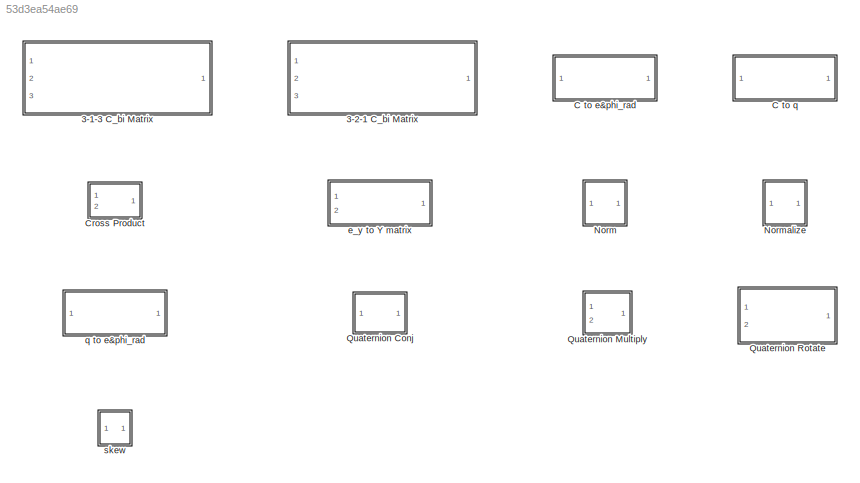
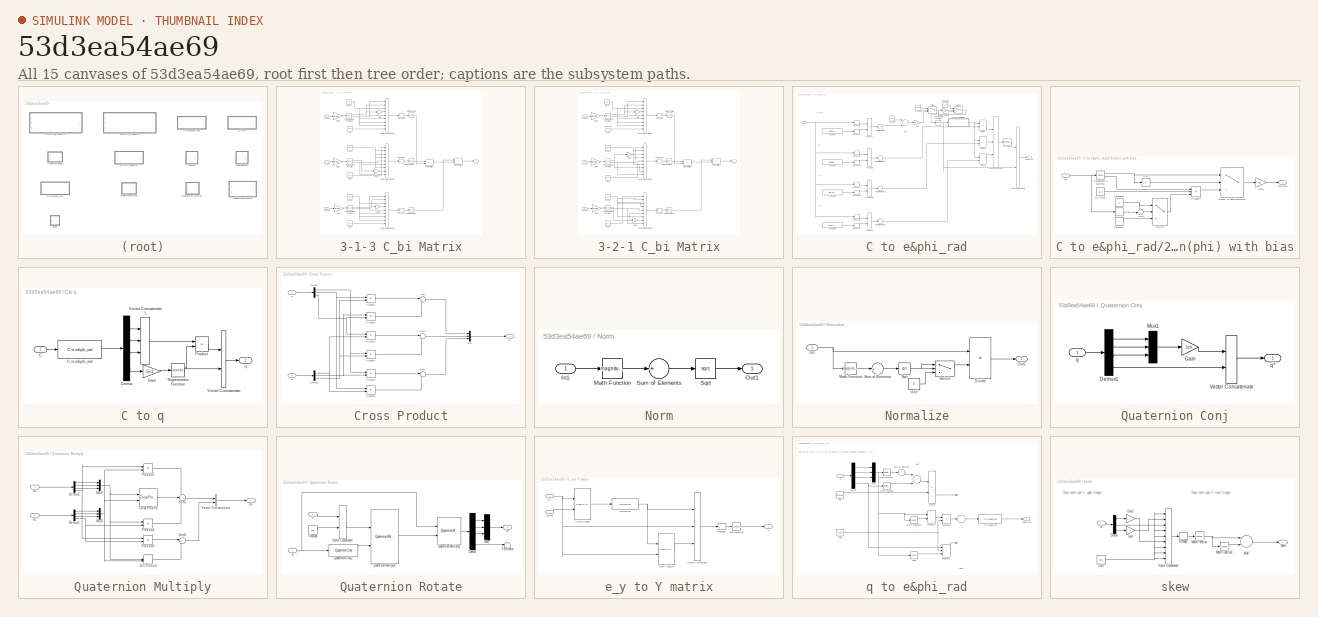
[diagram: thumbnail index - all 15 canvases of the model, root first then tree order]
MODEL slx_53d3ea54ae69
KIND library
CONFIG AbsTol = auto
CONFIG EnableMultiTasking = off
CONFIG FixedStep = auto
CONFIG MaxStep = auto
CONFIG MinStep = auto
CONFIG RelTol = 1e-3
CONFIG SampleTimeConstraint = Unconstrained
CONFIG Solver = VariableStepAuto
CONFIG SolverName = VariableStepAuto
CONFIG StartTime = 0.0
CONFIG StopTime = 10.0
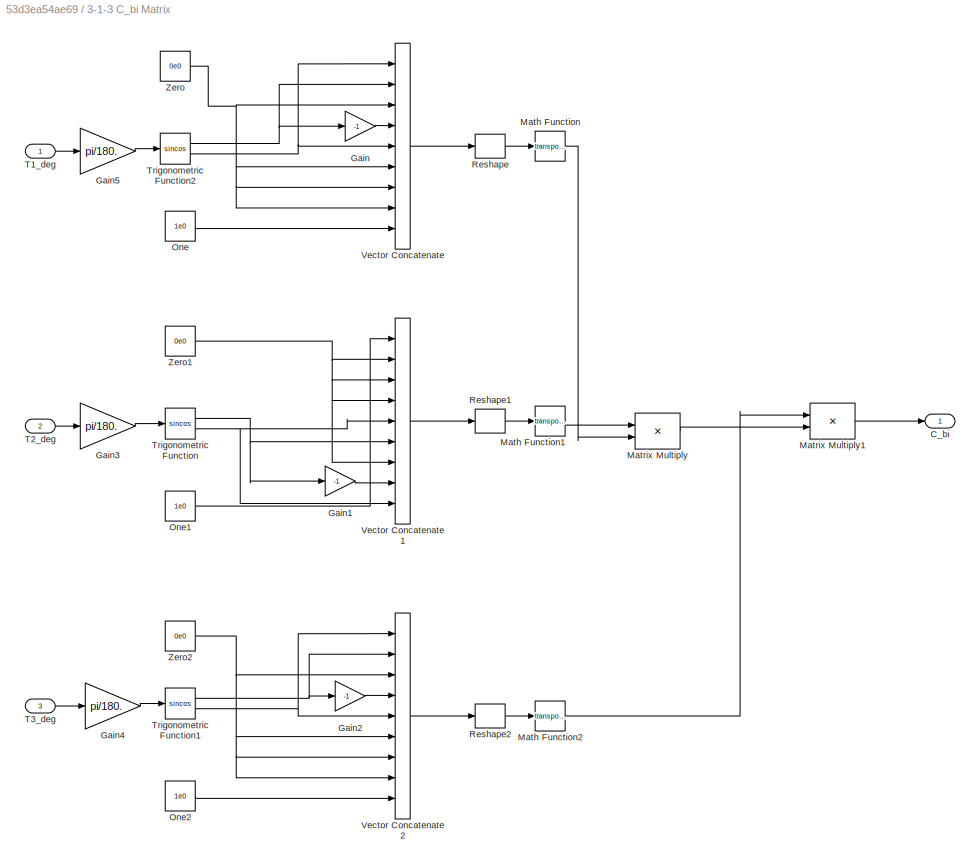
BLOCK [SubSystem] 3-1-3 C_bi Matrix
  Ports = [3, 1]
  RequestExecContextInheritance = off
  Tag = text(.05,.5,'{\itEquation:}  \Sigma \alpha^2 + \n\beta^2 \rightarrow \infty, \Pi, \phi_3 = {\bfcool}', \n'hor','left','texmode','on')
BLOCK [Outport] 3-1-3 C_bi Matrix/C_bi
  IconDisplay = Port number
BLOCK [Gain] 3-1-3 C_bi Matrix/Gain
  Gain = -1
  OutDataTypeStr = Inherit: Inherit via internal rule
  ParamDataTypeStr = Inherit: Inherit via internal rule
  SaturateOnIntegerOverflow = off
BLOCK [Gain] 3-1-3 C_bi Matrix/Gain1
  Gain = -1
  OutDataTypeStr = Inherit: Inherit via internal rule
  ParamDataTypeStr = Inherit: Inherit via internal rule
  SaturateOnIntegerOverflow = off
BLOCK [Gain] 3-1-3 C_bi Matrix/Gain2
  Gain = -1
  OutDataTypeStr = Inherit: Inherit via internal rule
  ParamDataTypeStr = Inherit: Inherit via internal rule
  SaturateOnIntegerOverflow = off
BLOCK [Gain] 3-1-3 C_bi Matrix/Gain3
  Gain = pi/180.
  OutDataTypeStr = Inherit: Inherit via internal rule
  ParamDataTypeStr = Inherit: Inherit via internal rule
  SaturateOnIntegerOverflow = off
BLOCK [Gain] 3-1-3 C_bi Matrix/Gain4
  Gain = pi/180.
  OutDataTypeStr = Inherit: Inherit via internal rule
  ParamDataTypeStr = Inherit: Inherit via internal rule
  SaturateOnIntegerOverflow = off
BLOCK [Gain] 3-1-3 C_bi Matrix/Gain5
  Gain = pi/180.
  OutDataTypeStr = Inherit: Inherit via internal rule
  ParamDataTypeStr = Inherit: Inherit via internal rule
  SaturateOnIntegerOverflow = off
BLOCK [Math] 3-1-3 C_bi Matrix/Math Function
  Operator = transpose
  Ports = [1, 1]
  SignedPower = off
BLOCK [Math] 3-1-3 C_bi Matrix/Math Function1
  Operator = transpose
  Ports = [1, 1]
  SignedPower = off
BLOCK [Math] 3-1-3 C_bi Matrix/Math Function2
  Operator = transpose
  Ports = [1, 1]
  SignedPower = off
BLOCK [Product] 3-1-3 C_bi Matrix/Matrix Multiply
  InputSameDT = off
  Multiplication = Matrix(*)
  OutDataTypeStr = Inherit: Inherit via internal rule
  Ports = [2, 1]
  RndMeth = Floor
  SaturateOnIntegerOverflow = off
BLOCK [Product] 3-1-3 C_bi Matrix/Matrix Multiply1
  InputSameDT = off
  Multiplication = Matrix(*)
  OutDataTypeStr = Inherit: Inherit via internal rule
  Ports = [2, 1]
  RndMeth = Floor
  SaturateOnIntegerOverflow = off
BLOCK [Constant] 3-1-3 C_bi Matrix/One
  Value = 1e0
BLOCK [Constant] 3-1-3 C_bi Matrix/One1
  Value = 1e0
BLOCK [Constant] 3-1-3 C_bi Matrix/One2
  Value = 1e0
BLOCK [Reshape] 3-1-3 C_bi Matrix/Reshape
  OutputDimensionality = Customize
  OutputDimensions = [3,3]
  Ports = [1, 1]
BLOCK [Reshape] 3-1-3 C_bi Matrix/Reshape1
  OutputDimensionality = Customize
  OutputDimensions = [3,3]
  Ports = [1, 1]
BLOCK [Reshape] 3-1-3 C_bi Matrix/Reshape2
  OutputDimensionality = Customize
  OutputDimensions = [3,3]
  Ports = [1, 1]
BLOCK [Inport] 3-1-3 C_bi Matrix/T1_deg
  IconDisplay = Port number
BLOCK [Inport] 3-1-3 C_bi Matrix/T2_deg
  IconDisplay = Port number
  Port = 2
BLOCK [Inport] 3-1-3 C_bi Matrix/T3_deg
  IconDisplay = Port number
  Port = 3
BLOCK [Trigonometry] 3-1-3 C_bi Matrix/Trigonometric Function
  Operator = sincos
  Ports = [1, 2]
BLOCK [Trigonometry] 3-1-3 C_bi Matrix/Trigonometric Function1
  Operator = sincos
  Ports = [1, 2]
BLOCK [Trigonometry] 3-1-3 C_bi Matrix/Trigonometric Function2
  Operator = sincos
  Ports = [1, 2]
BLOCK [Concatenate] 3-1-3 C_bi Matrix/Vector Concatenate
  NumInputs = 9
  Ports = [9, 1]
BLOCK [Concatenate] 3-1-3 C_bi Matrix/Vector Concatenate1
  NumInputs = 9
  Ports = [9, 1]
BLOCK [Concatenate] 3-1-3 C_bi Matrix/Vector Concatenate2
  NumInputs = 9
  Ports = [9, 1]
BLOCK [Constant] 3-1-3 C_bi Matrix/Zero
  Value = 0e0
BLOCK [Constant] 3-1-3 C_bi Matrix/Zero1
  Value = 0e0
BLOCK [Constant] 3-1-3 C_bi Matrix/Zero2
  Value = 0e0
BLOCK [SubSystem] 3-2-1 C_bi Matrix
  Ports = [3, 1]
  RequestExecContextInheritance = off
  Tag = text(.05,.5,'{\itEquation:}  \Sigma \alpha^2 + \n\beta^2 \rightarrow \infty, \Pi, \phi_3 = {\bfcool}', \n'hor','left','texmode','on')
BLOCK [Outport] 3-2-1 C_bi Matrix/C_bi
  IconDisplay = Port number
BLOCK [Gain] 3-2-1 C_bi Matrix/Gain
  Gain = -1
  OutDataTypeStr = Inherit: Inherit via internal rule
  ParamDataTypeStr = Inherit: Inherit via internal rule
  SaturateOnIntegerOverflow = off
BLOCK [Gain] 3-2-1 C_bi Matrix/Gain1
  Gain = -1
  OutDataTypeStr = Inherit: Inherit via internal rule
  ParamDataTypeStr = Inherit: Inherit via internal rule
  SaturateOnIntegerOverflow = off
BLOCK [Gain] 3-2-1 C_bi Matrix/Gain2
  Gain = -1
  OutDataTypeStr = Inherit: Inherit via internal rule
  ParamDataTypeStr = Inherit: Inherit via internal rule
  SaturateOnIntegerOverflow = off
BLOCK [Gain] 3-2-1 C_bi Matrix/Gain3
  Gain = pi/180.
  OutDataTypeStr = Inherit: Inherit via internal rule
  ParamDataTypeStr = Inherit: Inherit via internal rule
  SaturateOnIntegerOverflow = off
BLOCK [Gain] 3-2-1 C_bi Matrix/Gain4
  Gain = pi/180.
  OutDataTypeStr = Inherit: Inherit via internal rule
  ParamDataTypeStr = Inherit: Inherit via internal rule
  SaturateOnIntegerOverflow = off
BLOCK [Gain] 3-2-1 C_bi Matrix/Gain5
  Gain = pi/180.
  OutDataTypeStr = Inherit: Inherit via internal rule
  ParamDataTypeStr = Inherit: Inherit via internal rule
  SaturateOnIntegerOverflow = off
BLOCK [Math] 3-2-1 C_bi Matrix/Math Function
  Operator = transpose
  Ports = [1, 1]
  SignedPower = off
BLOCK [Math] 3-2-1 C_bi Matrix/Math Function1
  Operator = transpose
  Ports = [1, 1]
  SignedPower = off
BLOCK [Math] 3-2-1 C_bi Matrix/Math Function2
  Operator = transpose
  Ports = [1, 1]
  SignedPower = off
BLOCK [Product] 3-2-1 C_bi Matrix/Matrix Multiply
  InputSameDT = off
  Multiplication = Matrix(*)
  OutDataTypeStr = Inherit: Inherit via internal rule
  Ports = [2, 1]
  RndMeth = Floor
  SaturateOnIntegerOverflow = off
BLOCK [Product] 3-2-1 C_bi Matrix/Matrix Multiply1
  InputSameDT = off
  Multiplication = Matrix(*)
  OutDataTypeStr = Inherit: Inherit via internal rule
  Ports = [2, 1]
  RndMeth = Floor
  SaturateOnIntegerOverflow = off
BLOCK [Constant] 3-2-1 C_bi Matrix/One
  Value = 1e0
BLOCK [Constant] 3-2-1 C_bi Matrix/One1
  Value = 1e0
BLOCK [Constant] 3-2-1 C_bi Matrix/One2
  Value = 1e0
BLOCK [Reshape] 3-2-1 C_bi Matrix/Reshape
  OutputDimensionality = Customize
  OutputDimensions = [3,3]
  Ports = [1, 1]
BLOCK [Reshape] 3-2-1 C_bi Matrix/Reshape1
  OutputDimensionality = Customize
  OutputDimensions = [3,3]
  Ports = [1, 1]
BLOCK [Reshape] 3-2-1 C_bi Matrix/Reshape2
  OutputDimensionality = Customize
  OutputDimensions = [3,3]
  Ports = [1, 1]
BLOCK [Inport] 3-2-1 C_bi Matrix/T1_deg
  IconDisplay = Port number
BLOCK [Inport] 3-2-1 C_bi Matrix/T2_deg
  IconDisplay = Port number
  Port = 2
BLOCK [Inport] 3-2-1 C_bi Matrix/T3_deg
  IconDisplay = Port number
  Port = 3
BLOCK [Trigonometry] 3-2-1 C_bi Matrix/Trigonometric Function
  Operator = sincos
  Ports = [1, 2]
BLOCK [Trigonometry] 3-2-1 C_bi Matrix/Trigonometric Function1
  Operator = sincos
  Ports = [1, 2]
BLOCK [Trigonometry] 3-2-1 C_bi Matrix/Trigonometric Function2
  Operator = sincos
  Ports = [1, 2]
BLOCK [Concatenate] 3-2-1 C_bi Matrix/Vector Concatenate
  NumInputs = 9
  Ports = [9, 1]
BLOCK [Concatenate] 3-2-1 C_bi Matrix/Vector Concatenate1
  NumInputs = 9
  Ports = [9, 1]
BLOCK [Concatenate] 3-2-1 C_bi Matrix/Vector Concatenate2
  NumInputs = 9
  Ports = [9, 1]
BLOCK [Constant] 3-2-1 C_bi Matrix/Zero
  Value = 0e0
BLOCK [Constant] 3-2-1 C_bi Matrix/Zero1
  Value = 0e0
BLOCK [Constant] 3-2-1 C_bi Matrix/Zero2
  Value = 0e0
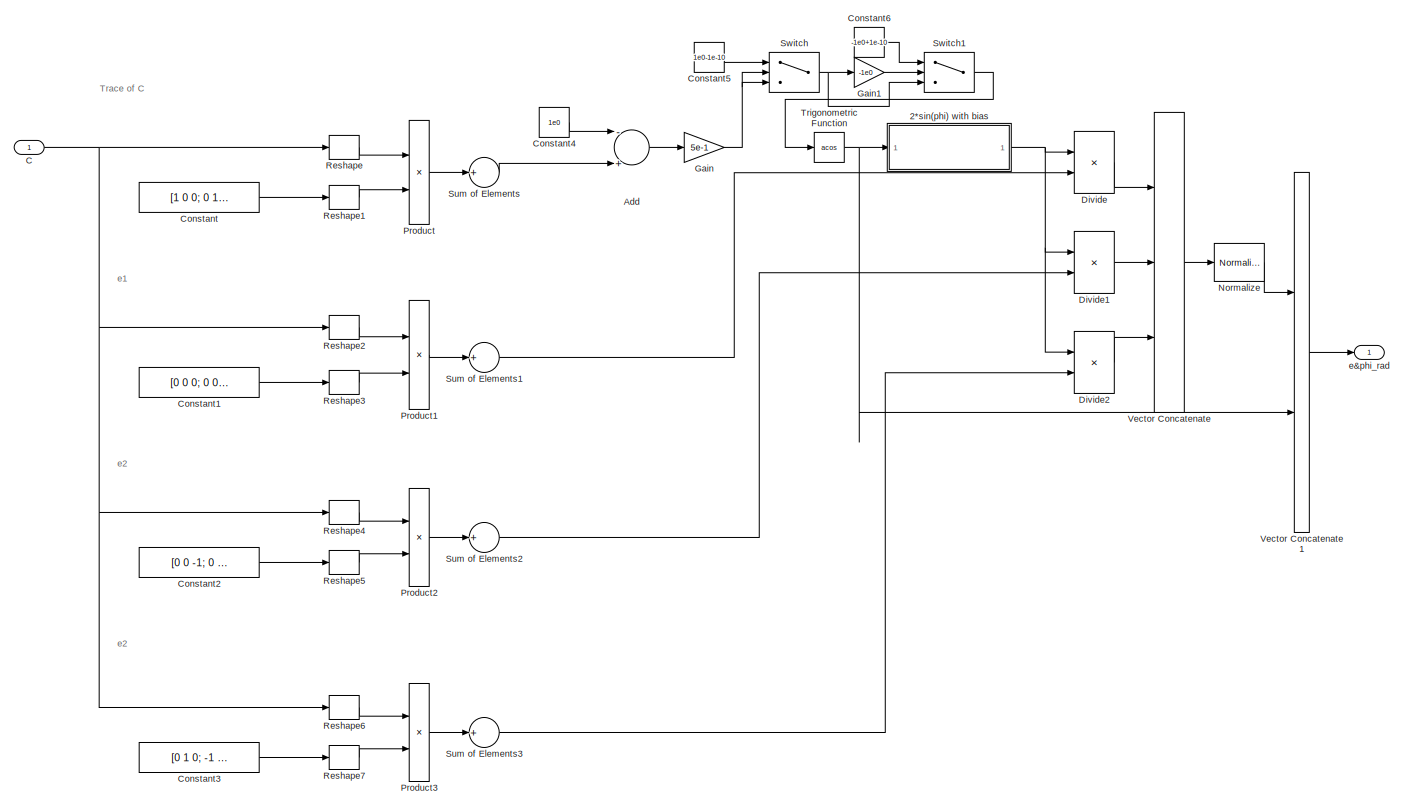
[diagram: C to e&phi_rad - part 1/1, most of the canvas]
BLOCK [SubSystem] C to e&phi_rad
  Ports = [1, 1]
  RequestExecContextInheritance = off
BLOCK [SubSystem] C to e&phi_rad/2*sin(phi) with bias
  Ports = [1, 1]
  RequestExecContextInheritance = off
BLOCK [Abs] C to e&phi_rad/2*sin(phi) with bias/Abs
  SaturateOnIntegerOverflow = off
BLOCK [Constant] C to e&phi_rad/2*sin(phi) with bias/Constant2
BLOCK [Constant] C to e&phi_rad/2*sin(phi) with bias/Constant3
  Value = -1
BLOCK [Gain] C to e&phi_rad/2*sin(phi) with bias/Gain1
  Gain = 2e0
  OutDataTypeStr = Inherit: Inherit via internal rule
  ParamDataTypeStr = Inherit: Inherit via internal rule
  SaturateOnIntegerOverflow = off
BLOCK [Constant] C to e&phi_rad/2*sin(phi) with bias/Min value
  Value = 1e-7
BLOCK [Product] C to e&phi_rad/2*sin(phi) with bias/Product4
  InputSameDT = off
  Inputs = 3
  OutDataTypeStr = Inherit: Inherit via internal rule
  Ports = [3, 1]
  RndMeth = Floor
  SaturateOnIntegerOverflow = off
BLOCK [Signum] C to e&phi_rad/2*sin(phi) with bias/Sign
  ZeroCross = off
BLOCK [Sum] C to e&phi_rad/2*sin(phi) with bias/Sum
  IconShape = round
  InputSameDT = off
  Inputs = ++|
  OutDataTypeStr = Inherit: Inherit via internal rule
  Ports = [2, 1]
  SaturateOnIntegerOverflow = off
BLOCK [Switch] C to e&phi_rad/2*sin(phi) with bias/Switch
  Criteria = u2 > Threshold
  InputSameDT = off
  SaturateOnIntegerOverflow = off
  ZeroCross = off
BLOCK [Trigonometry] C to e&phi_rad/2*sin(phi) with bias/Trigonometric Function1
  Operator = sincos
  Ports = [1, 2]
BLOCK [Inport] C to e&phi_rad/2*sin(phi) with bias/phi
  IconDisplay = Port number
BLOCK [Switch] C to e&phi_rad/2*sin(phi) with bias/sin(phi) or epsilon*cos(phi)
  Criteria = u2 > Threshold
  InputSameDT = off
  SaturateOnIntegerOverflow = off
  Threshold = 1e-7
  ZeroCross = off
BLOCK [Outport] C to e&phi_rad/2*sin(phi) with bias/~2*sin(phi)
  IconDisplay = Port number
BLOCK [Sum] C to e&phi_rad/Add
  InputSameDT = off
  Inputs = -+
  OutDataTypeStr = Inherit: Inherit via internal rule
  Ports = [2, 1]
  SaturateOnIntegerOverflow = off
BLOCK [Inport] C to e&phi_rad/C
  IconDisplay = Port number
BLOCK [Constant] C to e&phi_rad/Constant
  Value = [1 0 0; 0 1 0; 0 0 1]
BLOCK [Constant] C to e&phi_rad/Constant1
  Value = [0 0 0; 0 0 1; 0 -1 0]
BLOCK [Constant] C to e&phi_rad/Constant2
  Value = [0 0 -1; 0 0 0; 1 0 0]
BLOCK [Constant] C to e&phi_rad/Constant3
  Value = [0 1 0; -1 0 0; 0 0 0]
BLOCK [Constant] C to e&phi_rad/Constant4
  Value = 1e0
BLOCK [Constant] C to e&phi_rad/Constant5
  Value = 1e0-1e-10
BLOCK [Constant] C to e&phi_rad/Constant6
  Value = -1e0+1e-10
BLOCK [Product] C to e&phi_rad/Divide
  InputSameDT = off
  Inputs = /*
  OutDataTypeStr = Inherit: Inherit via internal rule
  Ports = [2, 1]
  RndMeth = Floor
  SaturateOnIntegerOverflow = off
BLOCK [Product] C to e&phi_rad/Divide1
  InputSameDT = off
  Inputs = /*
  OutDataTypeStr = Inherit: Inherit via internal rule
  Ports = [2, 1]
  RndMeth = Floor
  SaturateOnIntegerOverflow = off
BLOCK [Product] C to e&phi_rad/Divide2
  InputSameDT = off
  Inputs = /*
  OutDataTypeStr = Inherit: Inherit via internal rule
  Ports = [2, 1]
  RndMeth = Floor
  SaturateOnIntegerOverflow = off
BLOCK [Gain] C to e&phi_rad/Gain
  Gain = 5e-1
  OutDataTypeStr = Inherit: Inherit via internal rule
  ParamDataTypeStr = Inherit: Inherit via internal rule
  SaturateOnIntegerOverflow = off
BLOCK [Gain] C to e&phi_rad/Gain1
  Gain = -1e0
  OutDataTypeStr = Inherit: Inherit via internal rule
  ParamDataTypeStr = Inherit: Inherit via internal rule
  SaturateOnIntegerOverflow = off
BLOCK [Reference] C to e&phi_rad/Normalize  REF=$bdroot/Normalize
  Ports = [1, 1]
  SourceBlock = $bdroot/Normalize
BLOCK [Product] C to e&phi_rad/Product
  InputSameDT = off
  OutDataTypeStr = Inherit: Inherit via internal rule
  Ports = [2, 1]
  RndMeth = Floor
  SaturateOnIntegerOverflow = off
BLOCK [Product] C to e&phi_rad/Product1
  InputSameDT = off
  OutDataTypeStr = Inherit: Inherit via internal rule
  Ports = [2, 1]
  RndMeth = Floor
  SaturateOnIntegerOverflow = off
BLOCK [Product] C to e&phi_rad/Product2
  InputSameDT = off
  OutDataTypeStr = Inherit: Inherit via internal rule
  Ports = [2, 1]
  RndMeth = Floor
  SaturateOnIntegerOverflow = off
BLOCK [Product] C to e&phi_rad/Product3
  InputSameDT = off
  OutDataTypeStr = Inherit: Inherit via internal rule
  Ports = [2, 1]
  RndMeth = Floor
  SaturateOnIntegerOverflow = off
BLOCK [Reshape] C to e&phi_rad/Reshape
  OutputDimensionality = Customize
  OutputDimensions = [9,1]
  Ports = [1, 1]
BLOCK [Reshape] C to e&phi_rad/Reshape1
  OutputDimensionality = Customize
  OutputDimensions = [9,1]
  Ports = [1, 1]
BLOCK [Reshape] C to e&phi_rad/Reshape2
  OutputDimensionality = Customize
  OutputDimensions = [9,1]
  Ports = [1, 1]
BLOCK [Reshape] C to e&phi_rad/Reshape3
  OutputDimensionality = Customize
  OutputDimensions = [9,1]
  Ports = [1, 1]
BLOCK [Reshape] C to e&phi_rad/Reshape4
  OutputDimensionality = Customize
  OutputDimensions = [9,1]
  Ports = [1, 1]
BLOCK [Reshape] C to e&phi_rad/Reshape5
  OutputDimensionality = Customize
  OutputDimensions = [9,1]
  Ports = [1, 1]
BLOCK [Reshape] C to e&phi_rad/Reshape6
  OutputDimensionality = Customize
  OutputDimensions = [9,1]
  Ports = [1, 1]
BLOCK [Reshape] C to e&phi_rad/Reshape7
  OutputDimensionality = Customize
  OutputDimensions = [9,1]
  Ports = [1, 1]
BLOCK [Sum] C to e&phi_rad/Sum of Elements
  InputSameDT = off
  Inputs = +
  OutDataTypeStr = Inherit: Inherit via internal rule
  Ports = [1, 1]
  SaturateOnIntegerOverflow = off
BLOCK [Sum] C to e&phi_rad/Sum of Elements1
  InputSameDT = off
  Inputs = +
  OutDataTypeStr = Inherit: Inherit via internal rule
  Ports = [1, 1]
  SaturateOnIntegerOverflow = off
BLOCK [Sum] C to e&phi_rad/Sum of Elements2
  InputSameDT = off
  Inputs = +
  OutDataTypeStr = Inherit: Inherit via internal rule
  Ports = [1, 1]
  SaturateOnIntegerOverflow = off
BLOCK [Sum] C to e&phi_rad/Sum of Elements3
  InputSameDT = off
  Inputs = +
  OutDataTypeStr = Inherit: Inherit via internal rule
  Ports = [1, 1]
  SaturateOnIntegerOverflow = off
BLOCK [Switch] C to e&phi_rad/Switch
  Criteria = u2 > Threshold
  InputSameDT = off
  SaturateOnIntegerOverflow = off
  Threshold = 1e0
  ZeroCross = off
BLOCK [Switch] C to e&phi_rad/Switch1
  Criteria = u2 > Threshold
  InputSameDT = off
  SaturateOnIntegerOverflow = off
  Threshold = 1e0
  ZeroCross = off
BLOCK [Trigonometry] C to e&phi_rad/Trigonometric Function
  Operator = acos
  OutputSignalType = real
  Ports = [1, 1]
BLOCK [Concatenate] C to e&phi_rad/Vector Concatenate
  NumInputs = 3
  Ports = [3, 1]
BLOCK [Concatenate] C to e&phi_rad/Vector Concatenate1
  Ports = [2, 1]
BLOCK [Outport] C to e&phi_rad/e&phi_rad
  IconDisplay = Port number
BLOCK [SubSystem] C to q
  Ports = [1, 1]
  RequestExecContextInheritance = off
BLOCK [Inport] C to q/C
  IconDisplay = Port number
BLOCK [Reference] C to q/C to e&phi_rad  REF=$bdroot/C to e&phi_rad
  Ports = [1, 1]
  SourceBlock = $bdroot/C to e&phi_rad
BLOCK [Demux] C to q/Demux
  DisplayOption = bar
  Ports = [1, 4]
BLOCK [Gain] C to q/Gain
  Gain = 5e-1
  OutDataTypeStr = Inherit: Inherit via internal rule
  ParamDataTypeStr = Inherit: Inherit via internal rule
  SaturateOnIntegerOverflow = off
BLOCK [Product] C to q/Product
  InputSameDT = off
  OutDataTypeStr = Inherit: Inherit via internal rule
  Ports = [2, 1]
  RndMeth = Floor
  SaturateOnIntegerOverflow = off
BLOCK [Trigonometry] C to q/Trigonometric Function
  Operator = sincos
  Ports = [1, 2]
BLOCK [Concatenate] C to q/Vector Concatenate
  Ports = [2, 1]
BLOCK [Concatenate] C to q/Vector Concatenate1
  NumInputs = 3
  Ports = [3, 1]
BLOCK [Outport] C to q/q
  IconDisplay = Port number
BLOCK [SubSystem] Cross Product
  Ports = [2, 1]
  RequestExecContextInheritance = off
BLOCK [Demux] Cross Product/Demux
  DisplayOption = bar
  Outputs = 3
  Ports = [1, 3]
BLOCK [Demux] Cross Product/Demux1
  DisplayOption = bar
  Outputs = 3
  Ports = [1, 3]
BLOCK [Mux] Cross Product/Mux
  DisplayOption = bar
  Inputs = 3
  Ports = [3, 1]
BLOCK [Product] Cross Product/Product1
  InputSameDT = off
  OutDataTypeStr = Inherit: Inherit via internal rule
  Ports = [2, 1]
  RndMeth = Floor
  SaturateOnIntegerOverflow = off
BLOCK [Product] Cross Product/Product2
  InputSameDT = off
  OutDataTypeStr = Inherit: Inherit via internal rule
  Ports = [2, 1]
  RndMeth = Floor
  SaturateOnIntegerOverflow = off
BLOCK [Product] Cross Product/Product3
  InputSameDT = off
  OutDataTypeStr = Inherit: Inherit via internal rule
  Ports = [2, 1]
  RndMeth = Floor
  SaturateOnIntegerOverflow = off
BLOCK [Product] Cross Product/Product4
  InputSameDT = off
  OutDataTypeStr = Inherit: Inherit via internal rule
  Ports = [2, 1]
  RndMeth = Floor
  SaturateOnIntegerOverflow = off
BLOCK [Product] Cross Product/Product5
  InputSameDT = off
  OutDataTypeStr = Inherit: Inherit via internal rule
  Ports = [2, 1]
  RndMeth = Floor
  SaturateOnIntegerOverflow = off
BLOCK [Product] Cross Product/Product6
  InputSameDT = off
  OutDataTypeStr = Inherit: Inherit via internal rule
  Ports = [2, 1]
  RndMeth = Floor
  SaturateOnIntegerOverflow = off
BLOCK [Sum] Cross Product/Sum
  IconShape = round
  InputSameDT = off
  Inputs = |+-
  OutDataTypeStr = Inherit: Inherit via internal rule
  Ports = [2, 1]
  SaturateOnIntegerOverflow = off
BLOCK [Sum] Cross Product/Sum1
  IconShape = round
  InputSameDT = off
  Inputs = |+-
  OutDataTypeStr = Inherit: Inherit via internal rule
  Ports = [2, 1]
  SaturateOnIntegerOverflow = off
BLOCK [Sum] Cross Product/Sum2
  IconShape = round
  InputSameDT = off
  Inputs = |+-
  OutDataTypeStr = Inherit: Inherit via internal rule
  Ports = [2, 1]
  SaturateOnIntegerOverflow = off
BLOCK [Inport] Cross Product/v1
  IconDisplay = Port number
BLOCK [Inport] Cross Product/v2
  IconDisplay = Port number
  Port = 2
BLOCK [Outport] Cross Product/v3
  IconDisplay = Port number
  VectorParamsAs1DForOutWhenUnconnected = off
BLOCK [SubSystem] Norm
  Ports = [1, 1]
  RequestExecContextInheritance = off
BLOCK [Inport] Norm/In1
  IconDisplay = Port number
BLOCK [Math] Norm/Math Function
  Operator = magnitude^2
  Ports = [1, 1]
  SignedPower = off
BLOCK [Outport] Norm/Out1
  IconDisplay = Port number
BLOCK [Sqrt] Norm/Sqrt
BLOCK [Sum] Norm/Sum of Elements
  InputSameDT = off
  Inputs = +
  OutDataTypeStr = Inherit: Inherit via internal rule
  Ports = [1, 1]
  SaturateOnIntegerOverflow = off
BLOCK [SubSystem] Normalize
  Ports = [1, 1]
  RequestExecContextInheritance = off
BLOCK [Product] Normalize/Divide
  InputSameDT = off
  Inputs = */
  OutDataTypeStr = Inherit: Inherit via internal rule
  Ports = [2, 1]
  RndMeth = Floor
  SaturateOnIntegerOverflow = off
BLOCK [Inport] Normalize/In1
  IconDisplay = Port number
BLOCK [Math] Normalize/Math Function
  Operator = magnitude^2
  Ports = [1, 1]
  SignedPower = off
BLOCK [Constant] Normalize/One
BLOCK [Outport] Normalize/Out1
  IconDisplay = Port number
BLOCK [Sqrt] Normalize/Sqrt
BLOCK [Sum] Normalize/Sum of Elements
  InputSameDT = off
  Inputs = +
  OutDataTypeStr = Inherit: Inherit via internal rule
  Ports = [1, 1]
  SaturateOnIntegerOverflow = off
BLOCK [Switch] Normalize/Switch
  Criteria = u2 > Threshold
  InputSameDT = off
  SaturateOnIntegerOverflow = off
BLOCK [SubSystem] Quaternion Conj
  Ports = [1, 1]
  RequestExecContextInheritance = off
BLOCK [Demux] Quaternion Conj/Demux1
  DisplayOption = bar
  Ports = [1, 4]
BLOCK [Gain] Quaternion Conj/Gain
  Gain = -1e0
  OutDataTypeStr = Inherit: Inherit via internal rule
  ParamDataTypeStr = Inherit: Inherit via internal rule
  SaturateOnIntegerOverflow = off
BLOCK [Mux] Quaternion Conj/Mux1
  DisplayOption = bar
  Inputs = 3
  Ports = [3, 1]
BLOCK [Concatenate] Quaternion Conj/Vector Concatenate
  Ports = [2, 1]
BLOCK [Inport] Quaternion Conj/q
  IconDisplay = Port number
BLOCK [Outport] Quaternion Conj/q*
  IconDisplay = Port number
  VectorParamsAs1DForOutWhenUnconnected = off
BLOCK [SubSystem] Quaternion Multiply
  Ports = [2, 1]
  RequestExecContextInheritance = off
BLOCK [Reference] Quaternion Multiply/Cross Product  REF=$bdroot/Cross Product
  Ports = [2, 1]
  SourceBlock = $bdroot/Cross Product
BLOCK [Demux] Quaternion Multiply/Demux1
  DisplayOption = bar
  Ports = [1, 4]
BLOCK [Demux] Quaternion Multiply/Demux2
  DisplayOption = bar
  Ports = [1, 4]
BLOCK [DotProduct] Quaternion Multiply/Dot Product
  OutDataTypeStr = Inherit: Inherit via internal rule
BLOCK [Mux] Quaternion Multiply/Mux1
  DisplayOption = bar
  Inputs = 3
  Ports = [3, 1]
BLOCK [Mux] Quaternion Multiply/Mux2
  DisplayOption = bar
  Inputs = 3
  Ports = [3, 1]
BLOCK [Product] Quaternion Multiply/Product1
  InputSameDT = off
  OutDataTypeStr = Inherit: Inherit via internal rule
  Ports = [2, 1]
  RndMeth = Floor
  SaturateOnIntegerOverflow = off
BLOCK [Product] Quaternion Multiply/Product2
  InputSameDT = off
  OutDataTypeStr = Inherit: Inherit via internal rule
  Ports = [2, 1]
  RndMeth = Floor
  SaturateOnIntegerOverflow = off
BLOCK [Product] Quaternion Multiply/Product3
  InputSameDT = off
  OutDataTypeStr = Inherit: Inherit via internal rule
  Ports = [2, 1]
  RndMeth = Floor
  SaturateOnIntegerOverflow = off
BLOCK [Sum] Quaternion Multiply/Sum1
  IconShape = round
  InputSameDT = off
  Inputs = +++
  OutDataTypeStr = Inherit: Inherit via internal rule
  Ports = [3, 1]
  SaturateOnIntegerOverflow = off
BLOCK [Sum] Quaternion Multiply/Sum2
  IconShape = round
  InputSameDT = off
  Inputs = |+-
  OutDataTypeStr = Inherit: Inherit via internal rule
  Ports = [2, 1]
  SaturateOnIntegerOverflow = off
BLOCK [Concatenate] Quaternion Multiply/Vector Concatenate
  Ports = [2, 1]
BLOCK [Inport] Quaternion Multiply/q1
  IconDisplay = Port number
BLOCK [Inport] Quaternion Multiply/q2
  IconDisplay = Port number
  Port = 2
BLOCK [Outport] Quaternion Multiply/q3
  IconDisplay = Port number
  VectorParamsAs1DForOutWhenUnconnected = off
BLOCK [SubSystem] Quaternion Rotate
  Ports = [2, 1]
  RequestExecContextInheritance = off
BLOCK [Constant] Quaternion Rotate/Constant
  Value = 0e0
BLOCK [Demux] Quaternion Rotate/Demux
  DisplayOption = bar
  Ports = [1, 4]
BLOCK [Mux] Quaternion Rotate/Mux
  DisplayOption = bar
  Inputs = 3
  Ports = [3, 1]
BLOCK [Reference] Quaternion Rotate/Quaternion Conj1  REF=$bdroot/Quaternion Conj
  Ports = [1, 1]
  SourceBlock = $bdroot/Quaternion Conj
BLOCK [Reference] Quaternion Rotate/Quaternion Multiply1  REF=$bdroot/Quaternion Multiply
  Ports = [2, 1]
  SourceBlock = $bdroot/Quaternion Multiply
BLOCK [Reference] Quaternion Rotate/Quaternion Multiply2  REF=$bdroot/Quaternion Multiply
  Ports = [2, 1]
  SourceBlock = $bdroot/Quaternion Multiply
BLOCK [Terminator] Quaternion Rotate/Terminator
BLOCK [Concatenate] Quaternion Rotate/Vector Concatenate
  Ports = [2, 1]
BLOCK [Inport] Quaternion Rotate/q
  IconDisplay = Port number
BLOCK [Inport] Quaternion Rotate/v
  IconDisplay = Port number
  Port = 2
BLOCK [Outport] Quaternion Rotate/w
  IconDisplay = Port number
  VectorParamsAs1DForOutWhenUnconnected = off
BLOCK [SubSystem] e_y to Y matrix
  Ports = [2, 1]
  RequestExecContextInheritance = off
BLOCK [Outport] e_y to Y matrix/C
  IconDisplay = Port number
BLOCK [Reference] e_y to Y matrix/Cross Product  REF=$bdroot/Cross Product
  Ports = [2, 1]
  SourceBlock = $bdroot/Cross Product
BLOCK [Reference] e_y to Y matrix/Cross Product1  REF=$bdroot/Cross Product
  Ports = [2, 1]
  SourceBlock = $bdroot/Cross Product
BLOCK [Math] e_y to Y matrix/Math Function
  Operator = transpose
  Ports = [1, 1]
  SignedPower = off
BLOCK [Reference] e_y to Y matrix/Normalize  REF=$bdroot/Normalize
  Ports = [1, 1]
  SourceBlock = $bdroot/Normalize
BLOCK [Reshape] e_y to Y matrix/Reshape
  OutputDimensionality = Customize
  OutputDimensions = [3,3]
  Ports = [1, 1]
BLOCK [Concatenate] e_y to Y matrix/Vector Concatenate
  NumInputs = 3
  Ports = [3, 1]
BLOCK [Inport] e_y to Y matrix/e_other
  IconDisplay = Port number
  Port = 2
BLOCK [Inport] e_y to Y matrix/e_y
  IconDisplay = Port number
BLOCK [SubSystem] q to e&phi_rad
  Ports = [1, 1]
  RequestExecContextInheritance = off
BLOCK [Sum] q to e&phi_rad/Add
  InputSameDT = off
  Inputs = -+
  OutDataTypeStr = Inherit: Inherit via internal rule
  Ports = [2, 1]
  SaturateOnIntegerOverflow = off
BLOCK [Sum] q to e&phi_rad/Add1
  InputSameDT = off
  Inputs = ++-
  OutDataTypeStr = Inherit: Inherit via internal rule
  Ports = [3, 1]
  SaturateOnIntegerOverflow = off
BLOCK [Reference] q to e&phi_rad/C to e&phi_rad  REF=$bdroot/C to e&phi_rad
  Ports = [1, 1]
  SourceBlock = $bdroot/C to e&phi_rad
BLOCK [Demux] q to e&phi_rad/Demux
  DisplayOption = bar
  Ports = [1, 4]
BLOCK [Math] q to e&phi_rad/Math Function
  Operator = magnitude^2
  Ports = [1, 1]
  SignedPower = off
BLOCK [Math] q to e&phi_rad/Math Function1
  Operator = magnitude^2
  Ports = [1, 1]
  SignedPower = off
BLOCK [Math] q to e&phi_rad/Math Function2
  Operator = transpose
  Ports = [1, 1]
  SignedPower = off
BLOCK [Mux] q to e&phi_rad/Mux
  DisplayOption = bar
  Inputs = 3
  Ports = [3, 1]
BLOCK [Product] q to e&phi_rad/Product
  InputSameDT = off
  OutDataTypeStr = Inherit: Inherit via internal rule
  Ports = [2, 1]
  RndMeth = Floor
  SaturateOnIntegerOverflow = off
BLOCK [Product] q to e&phi_rad/Product1
  InputSameDT = off
  Inputs = 3
  OutDataTypeStr = Inherit: Inherit via internal rule
  Ports = [3, 1]
  RndMeth = Floor
  SaturateOnIntegerOverflow = off
BLOCK [Product] q to e&phi_rad/Product2
  InputSameDT = off
  Multiplication = Matrix(*)
  OutDataTypeStr = Inherit: Inherit via internal rule
  Ports = [2, 1]
  RndMeth = Floor
  SaturateOnIntegerOverflow = off
BLOCK [Product] q to e&phi_rad/Product3
  InputSameDT = off
  OutDataTypeStr = Inherit: Inherit via internal rule
  Ports = [2, 1]
  RndMeth = Floor
  SaturateOnIntegerOverflow = off
BLOCK [Sum] q to e&phi_rad/Sum of Elements
  InputSameDT = off
  Inputs = +
  OutDataTypeStr = Inherit: Inherit via internal rule
  Ports = [1, 1]
  SaturateOnIntegerOverflow = off
BLOCK [Constant] q to e&phi_rad/Two
  Value = 2e0
BLOCK [Outport] q to e&phi_rad/e&phi_rad
  IconDisplay = Port number
BLOCK [Constant] q to e&phi_rad/eye
  Value = [1e0 0e0 0e0; 0e0 1e0 0e0; 0e0 0e0 1e0]
BLOCK [Inport] q to e&phi_rad/q
  IconDisplay = Port number
BLOCK [Reference] q to e&phi_rad/skew  REF=$bdroot/skew
  Ports = [1, 1]
  SourceBlock = $bdroot/skew
BLOCK [SubSystem] skew
  Ports = [1, 1]
  RequestExecContextInheritance = off
BLOCK [Sum] skew/Add
  InputSameDT = off
  Inputs = +-
  OutDataTypeStr = Inherit: Inherit via internal rule
  Ports = [2, 1]
  SaturateOnIntegerOverflow = off
BLOCK [Demux] skew/Demux
  DisplayOption = bar
  Outputs = 3
  Ports = [1, 3]
BLOCK [Gain] skew/Gain
  Gain = -1
  OutDataTypeStr = Inherit: Inherit via internal rule
  ParamDataTypeStr = Inherit: Inherit via internal rule
  SaturateOnIntegerOverflow = off
BLOCK [Gain] skew/Gain1
  Gain = -1
  OutDataTypeStr = Inherit: Inherit via internal rule
  ParamDataTypeStr = Inherit: Inherit via internal rule
  SaturateOnIntegerOverflow = off
BLOCK [Math] skew/Math Function
  Operator = transpose
  Ports = [1, 1]
  SignedPower = off
BLOCK [Math] skew/Math Function1
  Operator = transpose
  Ports = [1, 1]
  SignedPower = off
BLOCK [Reshape] skew/Reshape
  OutputDimensionality = Customize
  OutputDimensions = [3,3]
  Ports = [1, 1]
BLOCK [Concatenate] skew/Vector Concatenate
  NumInputs = 9
  Ports = [9, 1]
BLOCK [Constant] skew/Zero
  Value = 0e0
BLOCK [Outport] skew/skew
  IconDisplay = Port number
BLOCK [Inport] skew/w
  IconDisplay = Port number
ANNOTATION C to e&phi_rad: Trace of C
ANNOTATION C to e&phi_rad: e1
ANNOTATION C to e&phi_rad: e2
ANNOTATION q to e&phi_rad: $C({\bf q},q_4) = (q_4^2-{\bf q}\cdot{\bf q})\cdot\overline{\overline{I}} + 2{\bf q}\otimes {\bf q}^T -2q_4\overline{\overline{{\bf q}^x}}$
ANNOTATION skew: Skew matrix part 1 - upper triangle
ANNOTATION skew: Skew matrix part 2 - lower triangle
LINE 3-1-3 C_bi Matrix/Gain1:1 -> 3-1-3 C_bi Matrix/Vector Concatenate1:8
LINE 3-1-3 C_bi Matrix/Gain2:1 -> 3-1-3 C_bi Matrix/Vector Concatenate2:4
LINE 3-1-3 C_bi Matrix/Gain3:1 -> 3-1-3 C_bi Matrix/Trigonometric Function:1
LINE 3-1-3 C_bi Matrix/Gain4:1 -> 3-1-3 C_bi Matrix/Trigonometric Function1:1
LINE 3-1-3 C_bi Matrix/Gain5:1 -> 3-1-3 C_bi Matrix/Trigonometric Function2:1
LINE 3-1-3 C_bi Matrix/Gain:1 -> 3-1-3 C_bi Matrix/Vector Concatenate:4
LINE 3-1-3 C_bi Matrix/Math Function1:1 -> 3-1-3 C_bi Matrix/Matrix Multiply:1
LINE 3-1-3 C_bi Matrix/Math Function2:1 -> 3-1-3 C_bi Matrix/Matrix Multiply1:1
LINE 3-1-3 C_bi Matrix/Math Function:1 -> 3-1-3 C_bi Matrix/Matrix Multiply:2
LINE 3-1-3 C_bi Matrix/Matrix Multiply1:1 -> 3-1-3 C_bi Matrix/C_bi:1
LINE 3-1-3 C_bi Matrix/Matrix Multiply:1 -> 3-1-3 C_bi Matrix/Matrix Multiply1:2
LINE 3-1-3 C_bi Matrix/One1:1 -> 3-1-3 C_bi Matrix/Vector Concatenate1:1
LINE 3-1-3 C_bi Matrix/One2:1 -> 3-1-3 C_bi Matrix/Vector Concatenate2:9
LINE 3-1-3 C_bi Matrix/One:1 -> 3-1-3 C_bi Matrix/Vector Concatenate:9
LINE 3-1-3 C_bi Matrix/Reshape1:1 -> 3-1-3 C_bi Matrix/Math Function1:1
LINE 3-1-3 C_bi Matrix/Reshape2:1 -> 3-1-3 C_bi Matrix/Math Function2:1
LINE 3-1-3 C_bi Matrix/Reshape:1 -> 3-1-3 C_bi Matrix/Math Function:1
LINE 3-1-3 C_bi Matrix/T1_deg:1 -> 3-1-3 C_bi Matrix/Gain5:1
LINE 3-1-3 C_bi Matrix/T2_deg:1 -> 3-1-3 C_bi Matrix/Gain3:1
LINE 3-1-3 C_bi Matrix/T3_deg:1 -> 3-1-3 C_bi Matrix/Gain4:1
NET 3-1-3 C_bi Matrix/Trigonometric Function1:1 -> 3-1-3 C_bi Matrix/Gain2:1, 3-1-3 C_bi Matrix/Vector Concatenate2:2
NET 3-1-3 C_bi Matrix/Trigonometric Function1:2 -> 3-1-3 C_bi Matrix/Vector Concatenate2:1, 3-1-3 C_bi Matrix/Vector Concatenate2:5
NET 3-1-3 C_bi Matrix/Trigonometric Function2:1 -> 3-1-3 C_bi Matrix/Gain:1, 3-1-3 C_bi Matrix/Vector Concatenate:2
NET 3-1-3 C_bi Matrix/Trigonometric Function2:2 -> 3-1-3 C_bi Matrix/Vector Concatenate:1, 3-1-3 C_bi Matrix/Vector Concatenate:5
NET 3-1-3 C_bi Matrix/Trigonometric Function:1 -> 3-1-3 C_bi Matrix/Gain1:1, 3-1-3 C_bi Matrix/Vector Concatenate1:6
NET 3-1-3 C_bi Matrix/Trigonometric Function:2 -> 3-1-3 C_bi Matrix/Vector Concatenate1:5, 3-1-3 C_bi Matrix/Vector Concatenate1:9
LINE 3-1-3 C_bi Matrix/Vector Concatenate1:1 -> 3-1-3 C_bi Matrix/Reshape1:1
LINE 3-1-3 C_bi Matrix/Vector Concatenate2:1 -> 3-1-3 C_bi Matrix/Reshape2:1
LINE 3-1-3 C_bi Matrix/Vector Concatenate:1 -> 3-1-3 C_bi Matrix/Reshape:1
NET 3-1-3 C_bi Matrix/Zero1:1 -> 3-1-3 C_bi Matrix/Vector Concatenate1:2, 3-1-3 C_bi Matrix/Vector Concatenate1:3, 3-1-3 C_bi Matrix/Vector Concatenate1:4, 3-1-3 C_bi Matrix/Vector Concatenate1:7
NET 3-1-3 C_bi Matrix/Zero2:1 -> 3-1-3 C_bi Matrix/Vector Concatenate2:3, 3-1-3 C_bi Matrix/Vector Concatenate2:6, 3-1-3 C_bi Matrix/Vector Concatenate2:7, 3-1-3 C_bi Matrix/Vector Concatenate2:8
NET 3-1-3 C_bi Matrix/Zero:1 -> 3-1-3 C_bi Matrix/Vector Concatenate:3, 3-1-3 C_bi Matrix/Vector Concatenate:6, 3-1-3 C_bi Matrix/Vector Concatenate:7, 3-1-3 C_bi Matrix/Vector Concatenate:8
LINE 3-2-1 C_bi Matrix/Gain1:1 -> 3-2-1 C_bi Matrix/Vector Concatenate1:3
LINE 3-2-1 C_bi Matrix/Gain2:1 -> 3-2-1 C_bi Matrix/Vector Concatenate2:8
LINE 3-2-1 C_bi Matrix/Gain3:1 -> 3-2-1 C_bi Matrix/Trigonometric Function:1
LINE 3-2-1 C_bi Matrix/Gain4:1 -> 3-2-1 C_bi Matrix/Trigonometric Function1:1
LINE 3-2-1 C_bi Matrix/Gain5:1 -> 3-2-1 C_bi Matrix/Trigonometric Function2:1
LINE 3-2-1 C_bi Matrix/Gain:1 -> 3-2-1 C_bi Matrix/Vector Concatenate:4
LINE 3-2-1 C_bi Matrix/Math Function1:1 -> 3-2-1 C_bi Matrix/Matrix Multiply:1
LINE 3-2-1 C_bi Matrix/Math Function2:1 -> 3-2-1 C_bi Matrix/Matrix Multiply1:1
LINE 3-2-1 C_bi Matrix/Math Function:1 -> 3-2-1 C_bi Matrix/Matrix Multiply:2
LINE 3-2-1 C_bi Matrix/Matrix Multiply1:1 -> 3-2-1 C_bi Matrix/C_bi:1
LINE 3-2-1 C_bi Matrix/Matrix Multiply:1 -> 3-2-1 C_bi Matrix/Matrix Multiply1:2
LINE 3-2-1 C_bi Matrix/One1:1 -> 3-2-1 C_bi Matrix/Vector Concatenate1:5
LINE 3-2-1 C_bi Matrix/One2:1 -> 3-2-1 C_bi Matrix/Vector Concatenate2:1
LINE 3-2-1 C_bi Matrix/One:1 -> 3-2-1 C_bi Matrix/Vector Concatenate:9
LINE 3-2-1 C_bi Matrix/Reshape1:1 -> 3-2-1 C_bi Matrix/Math Function1:1
LINE 3-2-1 C_bi Matrix/Reshape2:1 -> 3-2-1 C_bi Matrix/Math Function2:1
LINE 3-2-1 C_bi Matrix/Reshape:1 -> 3-2-1 C_bi Matrix/Math Function:1
LINE 3-2-1 C_bi Matrix/T1_deg:1 -> 3-2-1 C_bi Matrix/Gain5:1
LINE 3-2-1 C_bi Matrix/T2_deg:1 -> 3-2-1 C_bi Matrix/Gain3:1
LINE 3-2-1 C_bi Matrix/T3_deg:1 -> 3-2-1 C_bi Matrix/Gain4:1
NET 3-2-1 C_bi Matrix/Trigonometric Function1:1 -> 3-2-1 C_bi Matrix/Gain2:1, 3-2-1 C_bi Matrix/Vector Concatenate2:6
NET 3-2-1 C_bi Matrix/Trigonometric Function1:2 -> 3-2-1 C_bi Matrix/Vector Concatenate2:5, 3-2-1 C_bi Matrix/Vector Concatenate2:9
NET 3-2-1 C_bi Matrix/Trigonometric Function2:1 -> 3-2-1 C_bi Matrix/Gain:1, 3-2-1 C_bi Matrix/Vector Concatenate:2
NET 3-2-1 C_bi Matrix/Trigonometric Function2:2 -> 3-2-1 C_bi Matrix/Vector Concatenate:1, 3-2-1 C_bi Matrix/Vector Concatenate:5
NET 3-2-1 C_bi Matrix/Trigonometric Function:1 -> 3-2-1 C_bi Matrix/Gain1:1, 3-2-1 C_bi Matrix/Vector Concatenate1:7
NET 3-2-1 C_bi Matrix/Trigonometric Function:2 -> 3-2-1 C_bi Matrix/Vector Concatenate1:1, 3-2-1 C_bi Matrix/Vector Concatenate1:9
LINE 3-2-1 C_bi Matrix/Vector Concatenate1:1 -> 3-2-1 C_bi Matrix/Reshape1:1
LINE 3-2-1 C_bi Matrix/Vector Concatenate2:1 -> 3-2-1 C_bi Matrix/Reshape2:1
LINE 3-2-1 C_bi Matrix/Vector Concatenate:1 -> 3-2-1 C_bi Matrix/Reshape:1
NET 3-2-1 C_bi Matrix/Zero1:1 -> 3-2-1 C_bi Matrix/Vector Concatenate1:2, 3-2-1 C_bi Matrix/Vector Concatenate1:4, 3-2-1 C_bi Matrix/Vector Concatenate1:6, 3-2-1 C_bi Matrix/Vector Concatenate1:8
NET 3-2-1 C_bi Matrix/Zero2:1 -> 3-2-1 C_bi Matrix/Vector Concatenate2:2, 3-2-1 C_bi Matrix/Vector Concatenate2:3, 3-2-1 C_bi Matrix/Vector Concatenate2:4, 3-2-1 C_bi Matrix/Vector Concatenate2:7
NET 3-2-1 C_bi Matrix/Zero:1 -> 3-2-1 C_bi Matrix/Vector Concatenate:3, 3-2-1 C_bi Matrix/Vector Concatenate:6, 3-2-1 C_bi Matrix/Vector Concatenate:7, 3-2-1 C_bi Matrix/Vector Concatenate:8
LINE C to e&phi_rad/2*sin(phi) with bias/Abs:1 -> C to e&phi_rad/2*sin(phi) with bias/sin(phi) or epsilon*cos(phi):2
NET C to e&phi_rad/2*sin(phi) with bias/Constant2:1 -> C to e&phi_rad/2*sin(phi) with bias/Sum:1, C to e&phi_rad/2*sin(phi) with bias/Switch:1
LINE C to e&phi_rad/2*sin(phi) with bias/Constant3:1 -> C to e&phi_rad/2*sin(phi) with bias/Switch:3
LINE C to e&phi_rad/2*sin(phi) with bias/Gain1:1 -> C to e&phi_rad/2*sin(phi) with bias/~2*sin(phi):1
LINE C to e&phi_rad/2*sin(phi) with bias/Min value:1 -> C to e&phi_rad/2*sin(phi) with bias/Product4:2
LINE C to e&phi_rad/2*sin(phi) with bias/Product4:1 -> C to e&phi_rad/2*sin(phi) with bias/sin(phi) or epsilon*cos(phi):3
LINE C to e&phi_rad/2*sin(phi) with bias/Sign:1 -> C to e&phi_rad/2*sin(phi) with bias/Sum:2
LINE C to e&phi_rad/2*sin(phi) with bias/Sum:1 -> C to e&phi_rad/2*sin(phi) with bias/Switch:2
LINE C to e&phi_rad/2*sin(phi) with bias/Switch:1 -> C to e&phi_rad/2*sin(phi) with bias/Product4:3
NET C to e&phi_rad/2*sin(phi) with bias/Trigonometric Function1:1 -> C to e&phi_rad/2*sin(phi) with bias/Abs:1, C to e&phi_rad/2*sin(phi) with bias/sin(phi) or epsilon*cos(phi):1
LINE C to e&phi_rad/2*sin(phi) with bias/Trigonometric Function1:2 -> C to e&phi_rad/2*sin(phi) with bias/Product4:1
NET C to e&phi_rad/2*sin(phi) with bias/phi:1 -> C to e&phi_rad/2*sin(phi) with bias/Sign:1, C to e&phi_rad/2*sin(phi) with bias/Trigonometric Function1:1
LINE C to e&phi_rad/2*sin(phi) with bias/sin(phi) or epsilon*cos(phi):1 -> C to e&phi_rad/2*sin(phi) with bias/Gain1:1
NET C to e&phi_rad/2*sin(phi) with bias:1 -> C to e&phi_rad/Divide1:1, C to e&phi_rad/Divide2:1, C to e&phi_rad/Divide:1
LINE C to e&phi_rad/Add:1 -> C to e&phi_rad/Gain:1
NET C to e&phi_rad/C:1 -> C to e&phi_rad/Reshape2:1, C to e&phi_rad/Reshape4:1, C to e&phi_rad/Reshape6:1, C to e&phi_rad/Reshape:1
LINE C to e&phi_rad/Constant1:1 -> C to e&phi_rad/Reshape3:1
LINE C to e&phi_rad/Constant2:1 -> C to e&phi_rad/Reshape5:1
LINE C to e&phi_rad/Constant3:1 -> C to e&phi_rad/Reshape7:1
LINE C to e&phi_rad/Constant4:1 -> C to e&phi_rad/Add:1
LINE C to e&phi_rad/Constant5:1 -> C to e&phi_rad/Switch:1
LINE C to e&phi_rad/Constant6:1 -> C to e&phi_rad/Switch1:1
LINE C to e&phi_rad/Constant:1 -> C to e&phi_rad/Reshape1:1
LINE C to e&phi_rad/Divide1:1 -> C to e&phi_rad/Vector Concatenate:2
LINE C to e&phi_rad/Divide2:1 -> C to e&phi_rad/Vector Concatenate:3
LINE C to e&phi_rad/Divide:1 -> C to e&phi_rad/Vector Concatenate:1
LINE C to e&phi_rad/Gain1:1 -> C to e&phi_rad/Switch1:2
NET C to e&phi_rad/Gain:1 -> C to e&phi_rad/Switch:2, C to e&phi_rad/Switch:3
LINE C to e&phi_rad/Normalize:1 -> C to e&phi_rad/Vector Concatenate1:1
LINE C to e&phi_rad/Product1:1 -> C to e&phi_rad/Sum of Elements1:1
LINE C to e&phi_rad/Product2:1 -> C to e&phi_rad/Sum of Elements2:1
LINE C to e&phi_rad/Product3:1 -> C to e&phi_rad/Sum of Elements3:1
LINE C to e&phi_rad/Product:1 -> C to e&phi_rad/Sum of Elements:1
LINE C to e&phi_rad/Reshape1:1 -> C to e&phi_rad/Product:2
LINE C to e&phi_rad/Reshape2:1 -> C to e&phi_rad/Product1:1
LINE C to e&phi_rad/Reshape3:1 -> C to e&phi_rad/Product1:2
LINE C to e&phi_rad/Reshape4:1 -> C to e&phi_rad/Product2:1
LINE C to e&phi_rad/Reshape5:1 -> C to e&phi_rad/Product2:2
LINE C to e&phi_rad/Reshape6:1 -> C to e&phi_rad/Product3:1
LINE C to e&phi_rad/Reshape7:1 -> C to e&phi_rad/Product3:2
LINE C to e&phi_rad/Reshape:1 -> C to e&phi_rad/Product:1
LINE C to e&phi_rad/Sum of Elements1:1 -> C to e&phi_rad/Divide:2
LINE C to e&phi_rad/Sum of Elements2:1 -> C to e&phi_rad/Divide1:2
LINE C to e&phi_rad/Sum of Elements3:1 -> C to e&phi_rad/Divide2:2
LINE C to e&phi_rad/Sum of Elements:1 -> C to e&phi_rad/Add:2
LINE C to e&phi_rad/Switch1:1 -> C to e&phi_rad/Trigonometric Function:1
NET C to e&phi_rad/Switch:1 -> C to e&phi_rad/Gain1:1, C to e&phi_rad/Switch1:3
NET C to e&phi_rad/Trigonometric Function:1 -> C to e&phi_rad/2*sin(phi) with bias:1, C to e&phi_rad/Vector Concatenate1:2
LINE C to e&phi_rad/Vector Concatenate1:1 -> C to e&phi_rad/e&phi_rad:1
LINE C to e&phi_rad/Vector Concatenate:1 -> C to e&phi_rad/Normalize:1
LINE C to q/C to e&phi_rad:1 -> C to q/Demux:1
LINE C to q/C:1 -> C to q/C to e&phi_rad:1
LINE C to q/Demux:1 -> C to q/Vector Concatenate1:1
LINE C to q/Demux:2 -> C to q/Vector Concatenate1:2
LINE C to q/Demux:3 -> C to q/Vector Concatenate1:3
LINE C to q/Demux:4 -> C to q/Gain:1
LINE C to q/Gain:1 -> C to q/Trigonometric Function:1
LINE C to q/Product:1 -> C to q/Vector Concatenate:1
LINE C to q/Trigonometric Function:1 -> C to q/Product:2
LINE C to q/Trigonometric Function:2 -> C to q/Vector Concatenate:2
LINE C to q/Vector Concatenate1:1 -> C to q/Product:1
LINE C to q/Vector Concatenate:1 -> C to q/q:1
NET Cross Product/Demux1:1 -> Cross Product/Product1:2, Cross Product/Product6:2
NET Cross Product/Demux1:2 -> Cross Product/Product2:2, Cross Product/Product3:1
NET Cross Product/Demux1:3 -> Cross Product/Product4:2, Cross Product/Product5:2
NET Cross Product/Demux:1 -> Cross Product/Product2:1, Cross Product/Product4:1
NET Cross Product/Demux:2 -> Cross Product/Product1:1, Cross Product/Product5:1
NET Cross Product/Demux:3 -> Cross Product/Product3:2, Cross Product/Product6:1
LINE Cross Product/Mux:1 -> Cross Product/v3:1
LINE Cross Product/Product1:1 -> Cross Product/Sum2:2
LINE Cross Product/Product2:1 -> Cross Product/Sum2:1
LINE Cross Product/Product3:1 -> Cross Product/Sum:2
LINE Cross Product/Product4:1 -> Cross Product/Sum1:2
LINE Cross Product/Product5:1 -> Cross Product/Sum:1
LINE Cross Product/Product6:1 -> Cross Product/Sum1:1
LINE Cross Product/Sum1:1 -> Cross Product/Mux:2
LINE Cross Product/Sum2:1 -> Cross Product/Mux:3
LINE Cross Product/Sum:1 -> Cross Product/Mux:1
LINE Cross Product/v1:1 -> Cross Product/Demux:1
LINE Cross Product/v2:1 -> Cross Product/Demux1:1
LINE Norm/In1:1 -> Norm/Math Function:1
LINE Norm/Math Function:1 -> Norm/Sum of Elements:1
LINE Norm/Sqrt:1 -> Norm/Out1:1
LINE Norm/Sum of Elements:1 -> Norm/Sqrt:1
LINE Normalize/Divide:1 -> Normalize/Out1:1
NET Normalize/In1:1 -> Normalize/Divide:1, Normalize/Math Function:1
LINE Normalize/Math Function:1 -> Normalize/Sum of Elements:1
LINE Normalize/One:1 -> Normalize/Switch:3
NET Normalize/Sqrt:1 -> Normalize/Switch:1, Normalize/Switch:2
LINE Normalize/Sum of Elements:1 -> Normalize/Sqrt:1
LINE Normalize/Switch:1 -> Normalize/Divide:2
LINE Quaternion Conj/Demux1:1 -> Quaternion Conj/Mux1:1
LINE Quaternion Conj/Demux1:2 -> Quaternion Conj/Mux1:2
LINE Quaternion Conj/Demux1:3 -> Quaternion Conj/Mux1:3
LINE Quaternion Conj/Demux1:4 -> Quaternion Conj/Vector Concatenate:2
LINE Quaternion Conj/Gain:1 -> Quaternion Conj/Vector Concatenate:1
LINE Quaternion Conj/Mux1:1 -> Quaternion Conj/Gain:1
LINE Quaternion Conj/Vector Concatenate:1 -> Quaternion Conj/q*:1
LINE Quaternion Conj/q:1 -> Quaternion Conj/Demux1:1
LINE Quaternion Multiply/Cross Product:1 -> Quaternion Multiply/Sum1:2
LINE Quaternion Multiply/Demux1:1 -> Quaternion Multiply/Mux2:1
LINE Quaternion Multiply/Demux1:2 -> Quaternion Multiply/Mux2:2
LINE Quaternion Multiply/Demux1:3 -> Quaternion Multiply/Mux2:3
NET Quaternion Multiply/Demux1:4 -> Quaternion Multiply/Product2:2, Quaternion Multiply/Product3:2
LINE Quaternion Multiply/Demux2:1 -> Quaternion Multiply/Mux1:1
LINE Quaternion Multiply/Demux2:2 -> Quaternion Multiply/Mux1:2
LINE Quaternion Multiply/Demux2:3 -> Quaternion Multiply/Mux1:3
NET Quaternion Multiply/Demux2:4 -> Quaternion Multiply/Product1:1, Quaternion Multiply/Product3:1
LINE Quaternion Multiply/Dot Product:1 -> Quaternion Multiply/Sum2:2
NET Quaternion Multiply/Mux1:1 -> Quaternion Multiply/Cross Product:1, Quaternion Multiply/Dot Product:1, Quaternion Multiply/Product2:1
NET Quaternion Multiply/Mux2:1 -> Quaternion Multiply/Cross Product:2, Quaternion Multiply/Dot Product:2, Quaternion Multiply/Product1:2
LINE Quaternion Multiply/Product1:1 -> Quaternion Multiply/Sum1:1
LINE Quaternion Multiply/Product2:1 -> Quaternion Multiply/Sum1:3
LINE Quaternion Multiply/Product3:1 -> Quaternion Multiply/Sum2:1
LINE Quaternion Multiply/Sum1:1 -> Quaternion Multiply/Vector Concatenate:1
LINE Quaternion Multiply/Sum2:1 -> Quaternion Multiply/Vector Concatenate:2
LINE Quaternion Multiply/Vector Concatenate:1 -> Quaternion Multiply/q3:1
LINE Quaternion Multiply/q1:1 -> Quaternion Multiply/Demux2:1
LINE Quaternion Multiply/q2:1 -> Quaternion Multiply/Demux1:1
LINE Quaternion Rotate/Constant:1 -> Quaternion Rotate/Vector Concatenate:2
LINE Quaternion Rotate/Demux:1 -> Quaternion Rotate/Mux:1
LINE Quaternion Rotate/Demux:2 -> Quaternion Rotate/Mux:2
LINE Quaternion Rotate/Demux:3 -> Quaternion Rotate/Mux:3
LINE Quaternion Rotate/Demux:4 -> Quaternion Rotate/Terminator:1
LINE Quaternion Rotate/Mux:1 -> Quaternion Rotate/w:1
LINE Quaternion Rotate/Quaternion Conj1:1 -> Quaternion Rotate/Quaternion Multiply2:2
LINE Quaternion Rotate/Quaternion Multiply1:1 -> Quaternion Rotate/Demux:1
LINE Quaternion Rotate/Quaternion Multiply2:1 -> Quaternion Rotate/Quaternion Multiply1:2
LINE Quaternion Rotate/Vector Concatenate:1 -> Quaternion Rotate/Quaternion Multiply2:1
NET Quaternion Rotate/q:1 -> Quaternion Rotate/Quaternion Conj1:1, Quaternion Rotate/Quaternion Multiply1:1
LINE Quaternion Rotate/v:1 -> Quaternion Rotate/Vector Concatenate:1
LINE e_y to Y matrix/Cross Product1:1 -> e_y to Y matrix/Vector Concatenate:3
LINE e_y to Y matrix/Cross Product:1 -> e_y to Y matrix/Normalize:1
LINE e_y to Y matrix/Math Function:1 -> e_y to Y matrix/C:1
NET e_y to Y matrix/Normalize:1 -> e_y to Y matrix/Cross Product1:1, e_y to Y matrix/Vector Concatenate:1
LINE e_y to Y matrix/Reshape:1 -> e_y to Y matrix/Math Function:1
LINE e_y to Y matrix/Vector Concatenate:1 -> e_y to Y matrix/Reshape:1
LINE e_y to Y matrix/e_other:1 -> e_y to Y matrix/Cross Product:2
NET e_y to Y matrix/e_y:1 -> e_y to Y matrix/Cross Product1:2, e_y to Y matrix/Cross Product:1, e_y to Y matrix/Vector Concatenate:2
LINE q to e&phi_rad/Add1:1 -> q to e&phi_rad/C to e&phi_rad:1
LINE q to e&phi_rad/Add:1 -> q to e&phi_rad/Product:1
LINE q to e&phi_rad/C to e&phi_rad:1 -> q to e&phi_rad/e&phi_rad:1
LINE q to e&phi_rad/Demux:1 -> q to e&phi_rad/Mux:1
LINE q to e&phi_rad/Demux:2 -> q to e&phi_rad/Mux:2
LINE q to e&phi_rad/Demux:3 -> q to e&phi_rad/Mux:3
NET q to e&phi_rad/Demux:4 -> q to e&phi_rad/Math Function:1, q to e&phi_rad/Product1:1
LINE q to e&phi_rad/Math Function1:1 -> q to e&phi_rad/Sum of Elements:1
LINE q to e&phi_rad/Math Function2:1 -> q to e&phi_rad/Product2:2
LINE q to e&phi_rad/Math Function:1 -> q to e&phi_rad/Add:2
NET q to e&phi_rad/Mux:1 -> q to e&phi_rad/Math Function1:1, q to e&phi_rad/Math Function2:1, q to e&phi_rad/Product2:1, q to e&phi_rad/skew:1
LINE q to e&phi_rad/Product1:1 -> q to e&phi_rad/Add1:3
LINE q to e&phi_rad/Product2:1 -> q to e&phi_rad/Product3:1
LINE q to e&phi_rad/Product3:1 -> q to e&phi_rad/Add1:2
LINE q to e&phi_rad/Product:1 -> q to e&phi_rad/Add1:1
LINE q to e&phi_rad/Sum of Elements:1 -> q to e&phi_rad/Add:1
NET q to e&phi_rad/Two:1 -> q to e&phi_rad/Product1:2, q to e&phi_rad/Product3:2
LINE q to e&phi_rad/eye:1 -> q to e&phi_rad/Product:2
LINE q to e&phi_rad/q:1 -> q to e&phi_rad/Demux:1
LINE q to e&phi_rad/skew:1 -> q to e&phi_rad/Product1:3
LINE skew/Add:1 -> skew/skew:1
LINE skew/Demux:1 -> skew/Gain1:1
LINE skew/Demux:2 -> skew/Vector Concatenate:3
LINE skew/Demux:3 -> skew/Gain:1
LINE skew/Gain1:1 -> skew/Vector Concatenate:6
LINE skew/Gain:1 -> skew/Vector Concatenate:2
LINE skew/Math Function1:1 -> skew/Add:2
NET skew/Math Function:1 -> skew/Add:1, skew/Math Function1:1
LINE skew/Reshape:1 -> skew/Math Function:1
LINE skew/Vector Concatenate:1 -> skew/Reshape:1
NET skew/Zero:1 -> skew/Vector Concatenate:1, skew/Vector Concatenate:4, skew/Vector Concatenate:5, skew/Vector Concatenate:7, skew/Vector Concatenate:8, skew/Vector Concatenate:9
LINE skew/w:1 -> skew/Demux:1
note: NET lines group one-source signal fan-out (src -> all destinations, sorted); 1:1 wires keep LINE
